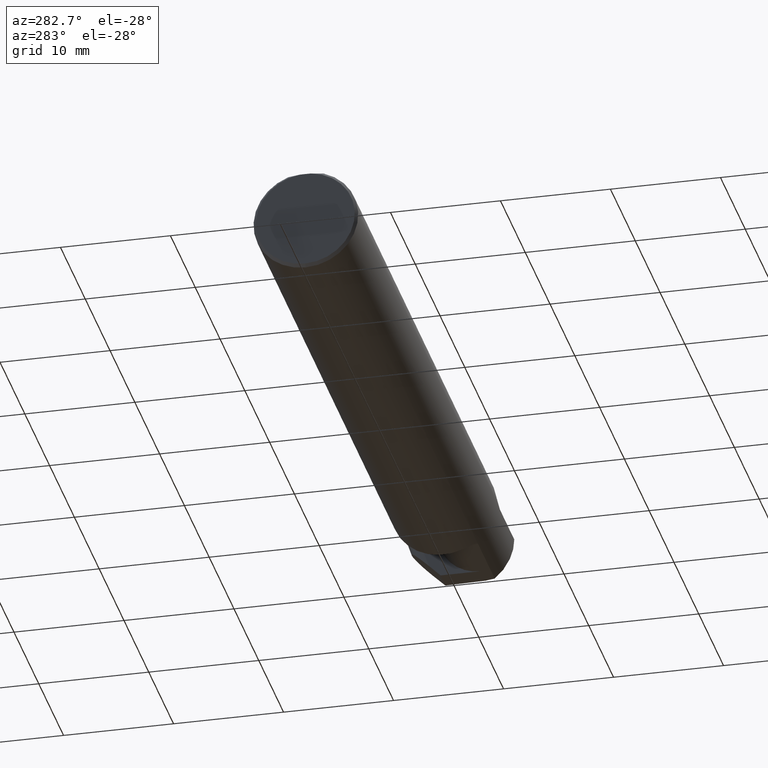
[diagram: clean part render]
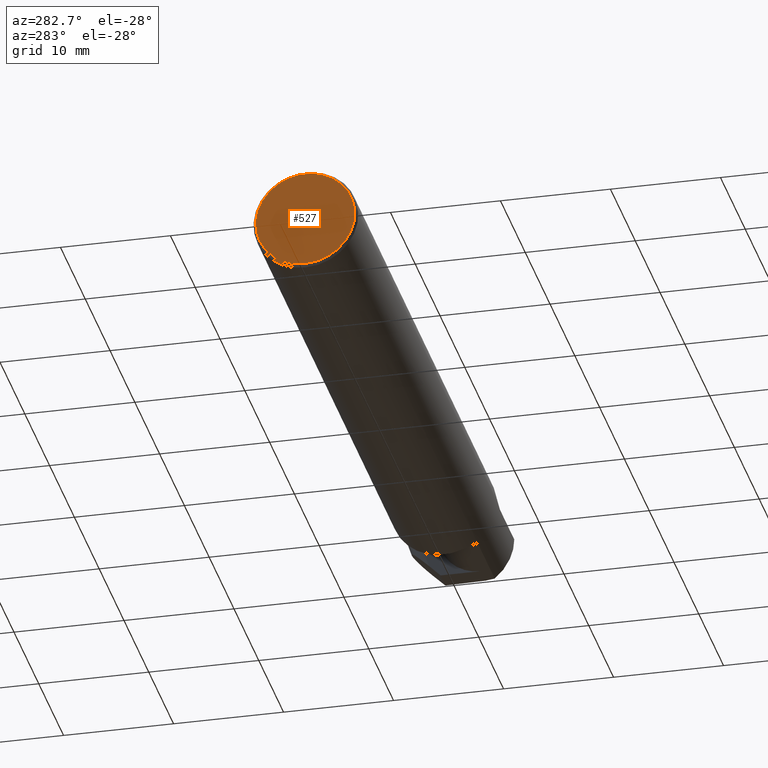
[diagram: same view with one face highlighted and labeled with its STEP entity id]
A machine part, auxiliary view. The second image highlights one B-rep face of the part: STEP entity #527.
In plain terms, the highlighted planar face has unit normal (1, 0, 0).
Its self-contained STEP definition (entity closure, byte-faithful):
#30 = DIRECTION ( 'NONE',  ( -0.000000000000000000, 1.000000000000000000, -0.000000000000000000 ) ) ;
#37 = CARTESIAN_POINT ( 'NONE',  ( 0.000000000000000000, 0.000000000000000000, -0.1773500000000005072 ) ) ;
#42 = FACE_OUTER_BOUND ( 'NONE', #273, .T. ) ;
#70 = ORIENTED_EDGE ( 'NONE', *, *, #356, .T. ) ;
#71 = CIRCLE ( 'NONE', #303, 0.1773500000000005072 ) ;
#89 = CARTESIAN_POINT ( 'NONE',  ( 0.000000000000000000, 0.01880691362239451242, 0.1763499999999999235 ) ) ;
#105 = CARTESIAN_POINT ( 'NONE',  ( 0.000000000000000000, 0.000000000000000000, 0.000000000000000000 ) ) ;
#157 = EDGE_CURVE ( 'NONE', #163, #547, #71, .T. ) ;
#163 = VERTEX_POINT ( 'NONE', #89 ) ;
#185 = CIRCLE ( 'NONE', #519, 0.1773500000000005072 ) ;
#187 = DIRECTION ( 'NONE',  ( -1.000000000000000000, -0.000000000000000000, -0.000000000000000000 ) ) ;
#209 = VERTEX_POINT ( 'NONE', #251 ) ;
#211 = AXIS2_PLACEMENT_3D ( 'NONE', #254, #427, #696 ) ;
#244 = LINE ( 'NONE', #580, #412 ) ;
#251 = CARTESIAN_POINT ( 'NONE',  ( 0.000000000000000000, -0.01880691362239451242, 0.1763499999999999235 ) ) ;
#254 = CARTESIAN_POINT ( 'NONE',  ( 0.000000000000000000, 0.000000000000000000, 0.000000000000000000 ) ) ;
#273 = EDGE_LOOP ( 'NONE', ( #70, #569, #625 ) ) ;
#303 = AXIS2_PLACEMENT_3D ( 'NONE', #105, #327, #598 ) ;
#305 = CARTESIAN_POINT ( 'NONE',  ( 0.000000000000000000, 0.000000000000000000, 0.000000000000000000 ) ) ;
#327 = DIRECTION ( 'NONE',  ( -1.000000000000000000, -0.000000000000000000, -0.000000000000000000 ) ) ;
#356 = EDGE_CURVE ( 'NONE', #209, #163, #244, .T. ) ;
#368 = PLANE ( 'NONE',  #211 ) ;
#379 = EDGE_CURVE ( 'NONE', #547, #209, #185, .T. ) ;
#412 = VECTOR ( 'NONE', #30, 39.37007874015748143 ) ;
#420 = DIRECTION ( 'NONE',  ( 0.000000000000000000, 0.000000000000000000, -1.000000000000000000 ) ) ;
#427 = DIRECTION ( 'NONE',  ( 1.000000000000000000, 0.000000000000000000, 0.000000000000000000 ) ) ;
#519 = AXIS2_PLACEMENT_3D ( 'NONE', #305, #187, #420 ) ;
#527 = ADVANCED_FACE ( 'NONE', ( #42 ), #368, .F. ) ;
#547 = VERTEX_POINT ( 'NONE', #37 ) ;
#569 = ORIENTED_EDGE ( 'NONE', *, *, #157, .T. ) ;
#580 = CARTESIAN_POINT ( 'NONE',  ( 0.000000000000000000, 0.1873499999999998500, 0.1763499999999999235 ) ) ;
#598 = DIRECTION ( 'NONE',  ( 0.000000000000000000, 0.000000000000000000, -1.000000000000000000 ) ) ;
#625 = ORIENTED_EDGE ( 'NONE', *, *, #379, .T. ) ;
#696 = DIRECTION ( 'NONE',  ( 0.000000000000000000, 0.000000000000000000, -1.000000000000000000 ) ) ;